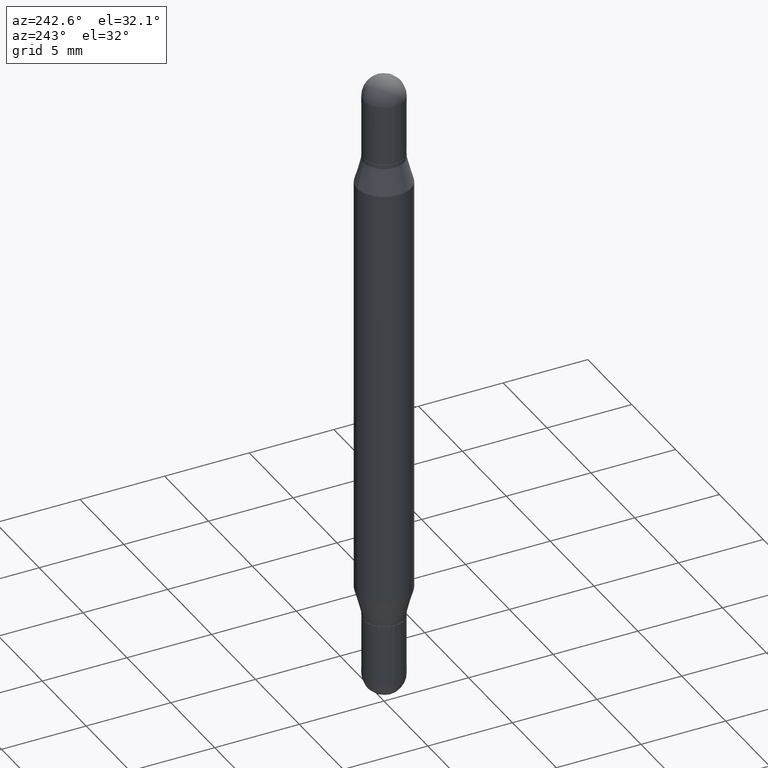
[diagram: clean part render]
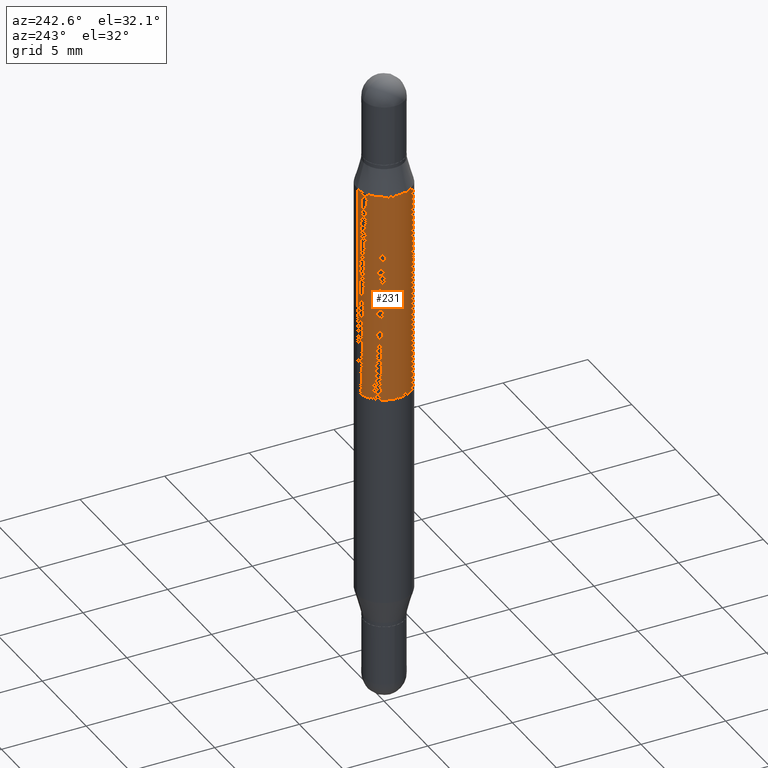
[diagram: same view with one face highlighted and labeled with its STEP entity id]
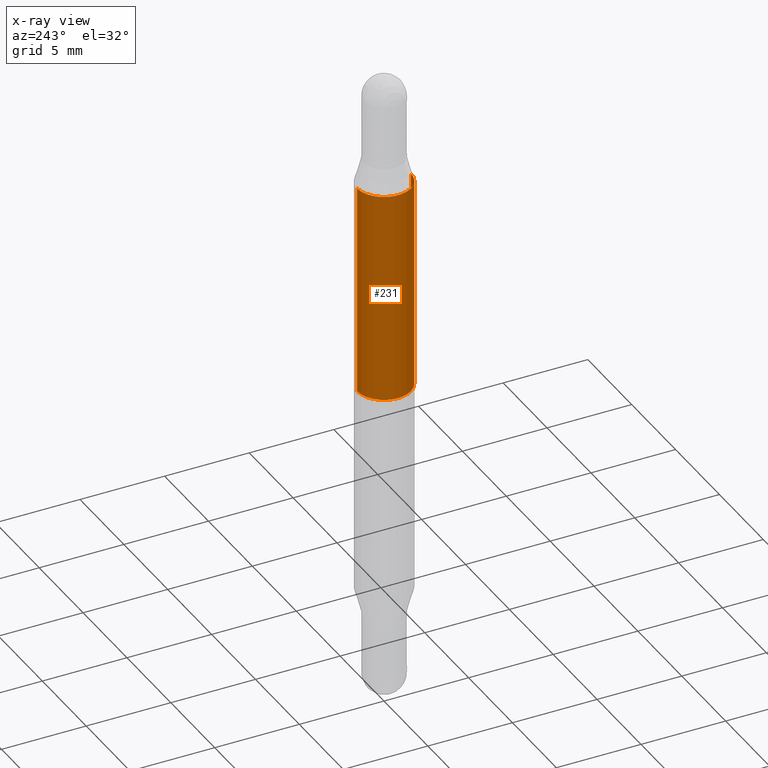
[diagram: x-ray of the same camera — body ghosted, the highlighted face saturated]
A machine part, auxiliary view. The second image highlights one B-rep face of the part: STEP entity #231.
The next image is the same camera in x-ray: the body ghosted, the highlighted face saturated — about 0% of this face is hidden behind the body in this view.
In plain terms, the highlighted cylindrical surface (edge-blend (fillet) strip) has radius 1.5875 mm, axis along (-0, -0, -1).
Its self-contained STEP definition (entity closure, byte-faithful):
#27 = CIRCLE ( 'NONE', #158, 0.06250000000000000000 ) ;
#55 = DIRECTION ( 'NONE',  ( -2.445729317596611550E-29, -3.479987534146448973E-15, -1.000000000000000000 ) ) ;
#59 = ORIENTED_EDGE ( 'NONE', *, *, #851, .T. ) ;
#74 = DIRECTION ( 'NONE',  ( -6.982962677686265922E-15, -1.000000000000000000, 3.278217592397115862E-15 ) ) ;
#145 = EDGE_CURVE ( 'NONE', #976, #564, #27, .T. ) ;
#158 = AXIS2_PLACEMENT_3D ( 'NONE', #789, #608, #510 ) ;
#220 = CARTESIAN_POINT ( 'NONE',  ( -4.364351673553916201E-16, -0.06250000000000521805, -1.500000000000000222 ) ) ;
#231 = ADVANCED_FACE ( 'NONE', ( #715 ), #901, .T. ) ;
#240 = DIRECTION ( 'NONE',  ( 2.445729317596611550E-29, 3.479987534146448973E-15, 1.000000000000000000 ) ) ;
#243 = VERTEX_POINT ( 'NONE', #1064 ) ;
#280 = EDGE_LOOP ( 'NONE', ( #905, #59, #896, #792 ) ) ;
#291 = EDGE_CURVE ( 'NONE', #498, #243, #420, .T. ) ;
#297 = CARTESIAN_POINT ( 'NONE',  ( 4.287811248607206733E-16, 0.06249999999999477501, -1.500000000000000666 ) ) ;
#304 = LINE ( 'NONE', #297, #744 ) ;
#356 = CARTESIAN_POINT ( 'NONE',  ( 0.000000000000000000, -5.228321854365732350E-15, -1.500000000000000444 ) ) ;
#366 = DIRECTION ( 'NONE',  ( -6.982962677686265922E-15, -1.000000000000000000, 4.370956789862821150E-15 ) ) ;
#403 = AXIS2_PLACEMENT_3D ( 'NONE', #356, #553, #366 ) ;
#420 = CIRCLE ( 'NONE', #1047, 0.06250000000000000000 ) ;
#498 = VERTEX_POINT ( 'NONE', #922 ) ;
#510 = DIRECTION ( 'NONE',  ( 0.000000000000000000, 1.000000000000000000, -4.370956789862821150E-15 ) ) ;
#553 = DIRECTION ( 'NONE',  ( -2.445729317596611550E-29, -3.479987534146448973E-15, -1.000000000000000000 ) ) ;
#564 = VERTEX_POINT ( 'NONE', #722 ) ;
#591 = VECTOR ( 'NONE', #812, 39.37007874015748143 ) ;
#608 = DIRECTION ( 'NONE',  ( -0.000000000000000000, -3.485547902910486918E-15, -1.000000000000000000 ) ) ;
#644 = LINE ( 'NONE', #220, #591 ) ;
#715 = FACE_OUTER_BOUND ( 'NONE', #280, .T. ) ;
#722 = CARTESIAN_POINT ( 'NONE',  ( 4.287811248607450787E-16, 0.06249999999999737710, -0.7500000000000004441 ) ) ;
#744 = VECTOR ( 'NONE', #55, 39.37007874015748143 ) ;
#789 = CARTESIAN_POINT ( 'NONE',  ( 1.834296988197459363E-29, -2.618331203755894437E-15, -0.7500000000000002220 ) ) ;
#792 = ORIENTED_EDGE ( 'NONE', *, *, #866, .F. ) ;
#812 = DIRECTION ( 'NONE',  ( -2.445729317596611550E-29, -3.479987534146448973E-15, -1.000000000000000000 ) ) ;
#851 = EDGE_CURVE ( 'NONE', #498, #564, #304, .T. ) ;
#866 = EDGE_CURVE ( 'NONE', #243, #976, #644, .T. ) ;
#896 = ORIENTED_EDGE ( 'NONE', *, *, #145, .F. ) ;
#901 = CYLINDRICAL_SURFACE ( 'NONE', #403, 0.06250000000000000000 ) ;
#905 = ORIENTED_EDGE ( 'NONE', *, *, #291, .F. ) ;
#908 = CARTESIAN_POINT ( 'NONE',  ( -4.364351673553732298E-16, -0.06250000000000262290, -0.7499999999999998890 ) ) ;
#922 = CARTESIAN_POINT ( 'NONE',  ( 4.287811248607510938E-16, 0.06249999999999910488, -0.2552199925980757067 ) ) ;
#976 = VERTEX_POINT ( 'NONE', #908 ) ;
#1002 = CARTESIAN_POINT ( 'NONE',  ( 3.044394958061014750E-29, -8.965029458523087270E-16, -0.2552199925980755402 ) ) ;
#1047 = AXIS2_PLACEMENT_3D ( 'NONE', #1002, #240, #74 ) ;
#1064 = CARTESIAN_POINT ( 'NONE',  ( -4.364351673553612490E-16, -0.06250000000000090206, -0.2552199925980753181 ) ) ;